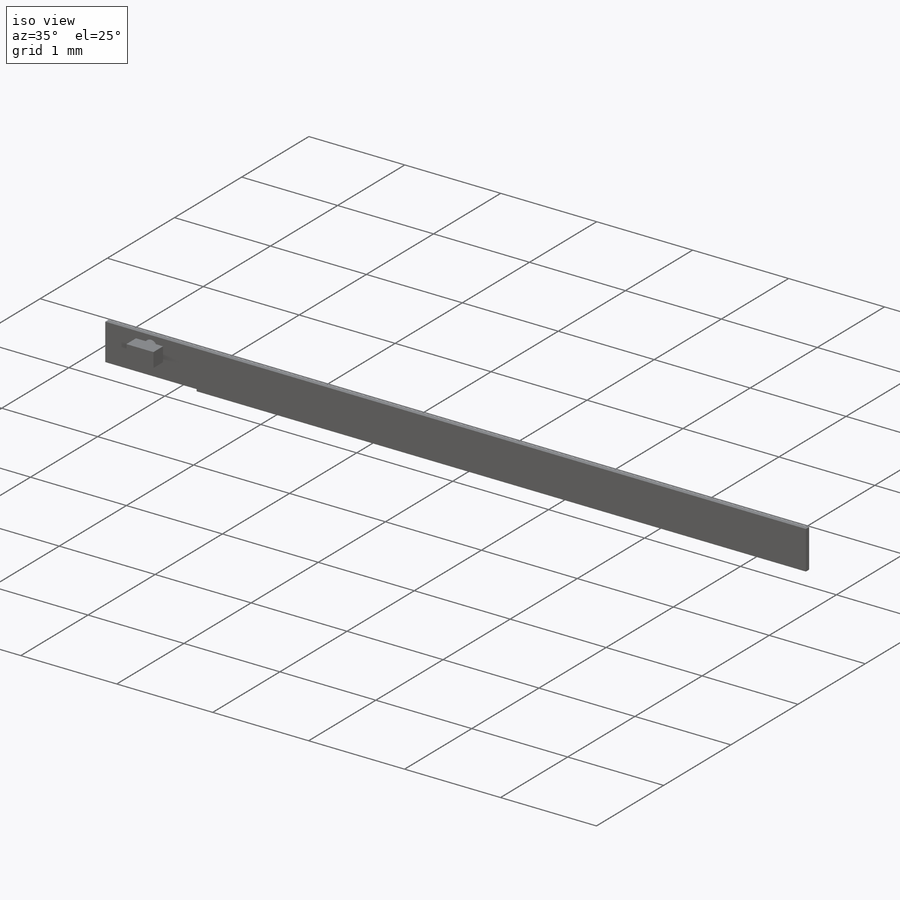
[diagram: iso view]
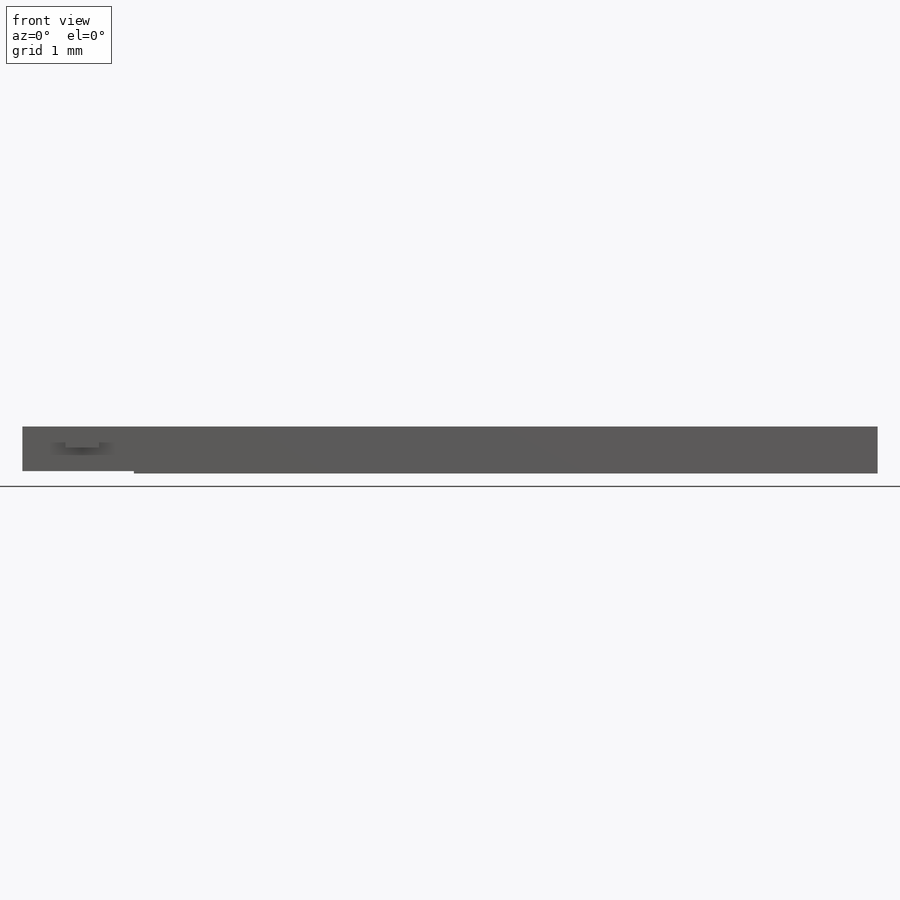
[diagram: front view]
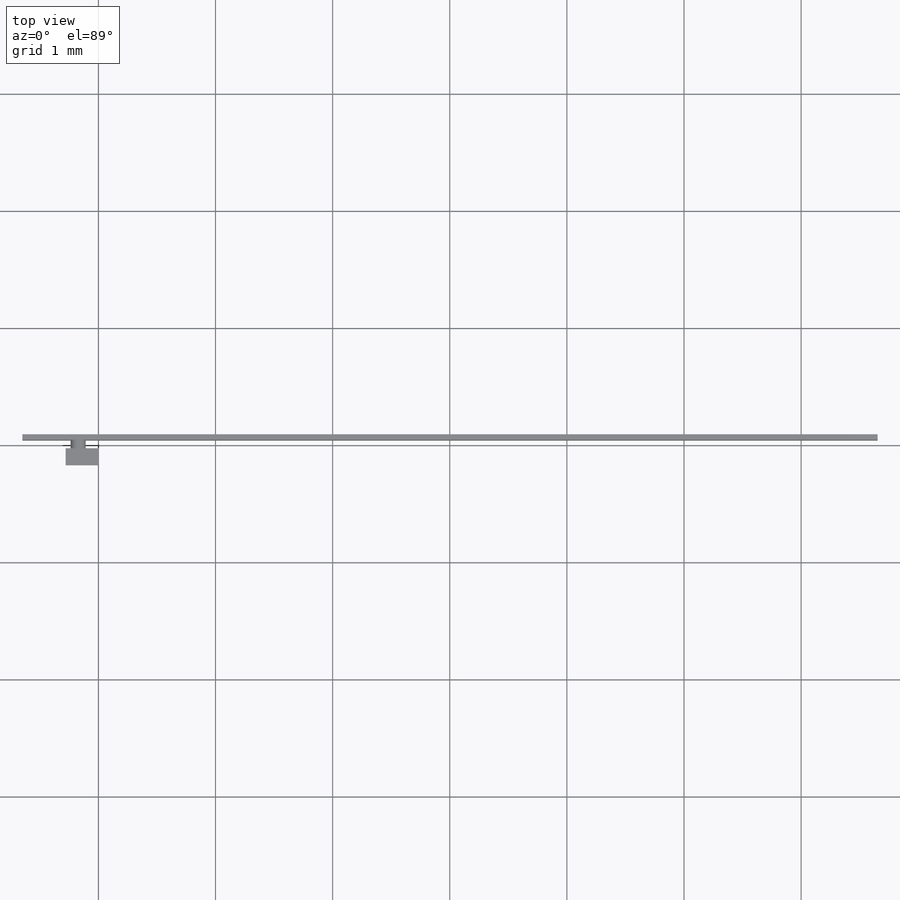
[diagram: top view]
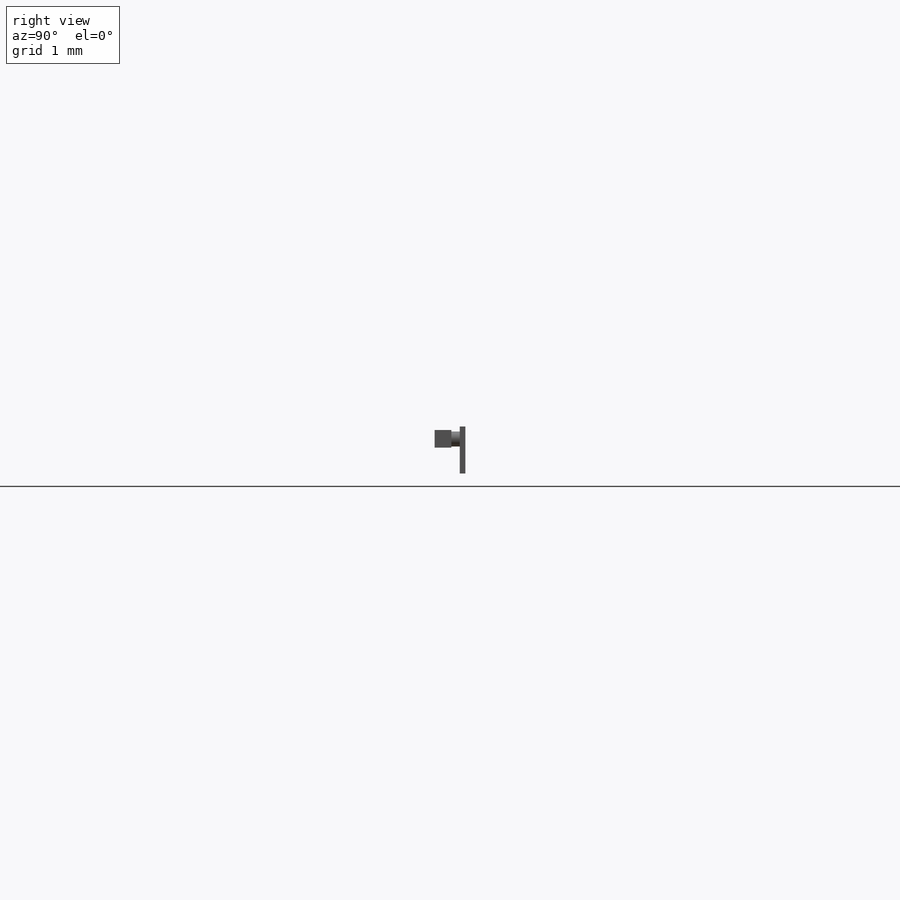
[diagram: right view]
SOLIDWORKS PART (.sldprt)
format: sldprt  version: not decoded by parser v0  size: 175,616 bytes
history: native  units: mm
features: sketch x4, extrude x4, move_body x4, material x1 (+13 scaffold rows collapsed)
feature tree (26):
  scaffold x13  (default folders/planes/origin — collapsed)
  material  "Material <not specified>"
  sketch  "Sketch2"  dims[D1=12.7mm D2=254.0mm]
  extrude  "Boss-Extrude1"  Depth=101.6mm
  sketch  "Sketch3"
  extrude  "Boss-Extrude2"  Depth=19.05mm
  sketch  "Sketch4"
  extrude  "Boss-Extrude3"  Depth=38.1mm
  move_body  "rotate"
  move_body  "-4 x"
  move_body  "-2 y"
  move_body  "-2.1z"
  sketch  "Sketch6"  dims[D1=6.35mm]
  extrude  "Boss-Extrude6"  Depth=0.40132mm
decode coverage: 6 of 12 modeling features carry decoded parameters
note: suppression state not decoded; provenance and decode notes live in map.json
